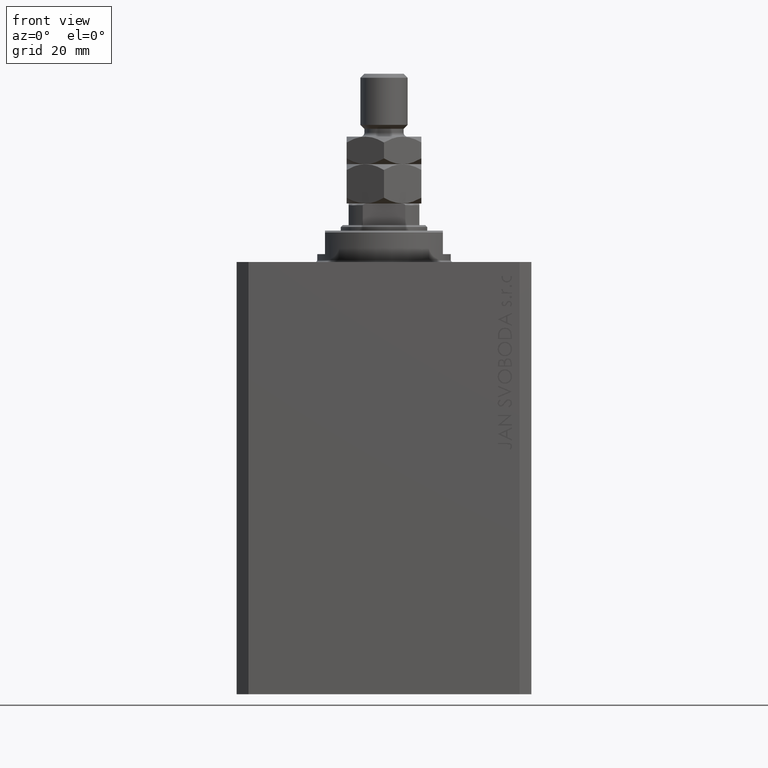
[diagram: clean part render]
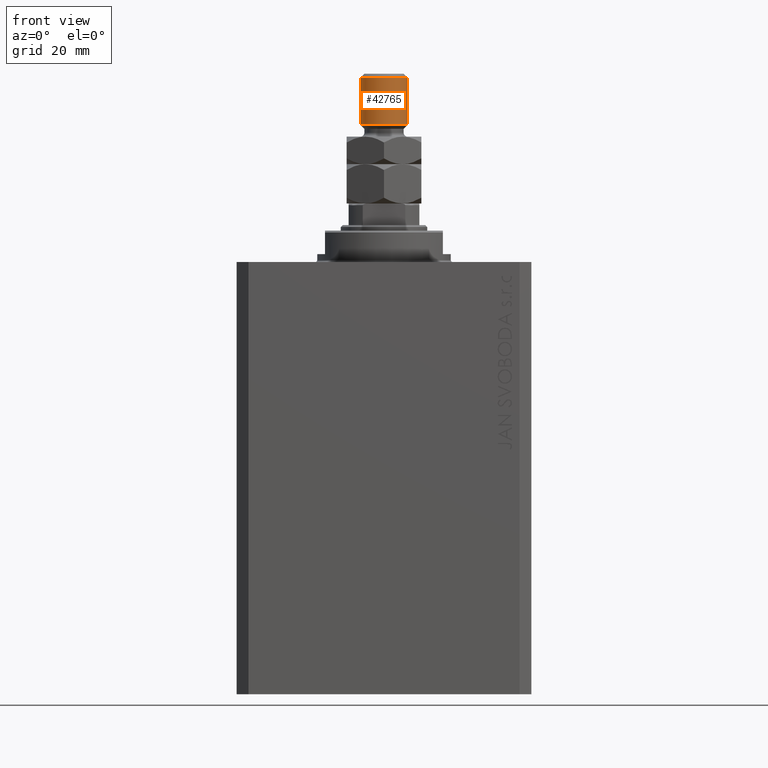
[diagram: same view with one face highlighted and labeled with its STEP entity id]
A machine part, front view. The second image highlights one B-rep face of the part: STEP entity #42765.
In plain terms, the highlighted cylindrical surface (edge-blend (fillet) strip) has radius 6 mm, axis along (-0, -0, -1).
Its self-contained STEP definition (entity closure, byte-faithful):
#1438 = DIRECTION ( 'NONE',  ( -0.000000000000000000, -0.000000000000000000, -1.000000000000000000 ) ) ;
#1981 = DIRECTION ( 'NONE',  ( -0.000000000000000000, -0.000000000000000000, 1.000000000000000000 ) ) ;
#2918 = EDGE_CURVE ( 'NONE', #26856, #43836, #8406, .T. ) ;
#3934 = ORIENTED_EDGE ( 'NONE', *, *, #19175, .T. ) ;
#4942 = DIRECTION ( 'NONE',  ( 1.000000000000000000, 0.000000000000000000, 0.000000000000000000 ) ) ;
#5677 = CARTESIAN_POINT ( 'NONE',  ( 0.000000000000000000, 0.000000000000000000, 20.00000000000000711 ) ) ;
#6818 = ORIENTED_EDGE ( 'NONE', *, *, #30848, .T. ) ;
#8406 = CIRCLE ( 'NONE', #27338, 6.000000000000000888 ) ;
#10136 = EDGE_LOOP ( 'NONE', ( #24186, #3934, #6818, #37737 ) ) ;
#10396 = CARTESIAN_POINT ( 'NONE',  ( 6.000000000000000888, 7.347880794884120722E-16, 33.00000000000000000 ) ) ;
#11997 = DIRECTION ( 'NONE',  ( 1.000000000000000000, 0.000000000000000000, 0.000000000000000000 ) ) ;
#12783 = DIRECTION ( 'NONE',  ( -1.000000000000000000, 0.000000000000000000, 0.000000000000000000 ) ) ;
#17280 = CARTESIAN_POINT ( 'NONE',  ( 6.000000000000000888, 7.347880794884120722E-16, 32.00000000000000000 ) ) ;
#18325 = CARTESIAN_POINT ( 'NONE',  ( -6.000000000000000888, 0.000000000000000000, 33.00000000000000000 ) ) ;
#18536 = LINE ( 'NONE', #10396, #27870 ) ;
#19175 = EDGE_CURVE ( 'NONE', #27536, #28732, #24341, .T. ) ;
#20201 = FACE_OUTER_BOUND ( 'NONE', #10136, .T. ) ;
#20396 = DIRECTION ( 'NONE',  ( 0.000000000000000000, 0.000000000000000000, -1.000000000000000000 ) ) ;
#22047 = LINE ( 'NONE', #18325, #31194 ) ;
#23188 = AXIS2_PLACEMENT_3D ( 'NONE', #35266, #1438, #12783 ) ;
#24186 = ORIENTED_EDGE ( 'NONE', *, *, #36365, .F. ) ;
#24341 = CIRCLE ( 'NONE', #48772, 6.000000000000000888 ) ;
#26463 = DIRECTION ( 'NONE',  ( -0.000000000000000000, -0.000000000000000000, -1.000000000000000000 ) ) ;
#26856 = VERTEX_POINT ( 'NONE', #47890 ) ;
#27338 = AXIS2_PLACEMENT_3D ( 'NONE', #5677, #1981, #4942 ) ;
#27536 = VERTEX_POINT ( 'NONE', #17280 ) ;
#27870 = VECTOR ( 'NONE', #48168, 1000.000000000000000 ) ;
#28732 = VERTEX_POINT ( 'NONE', #37991 ) ;
#30848 = EDGE_CURVE ( 'NONE', #28732, #26856, #22047, .T. ) ;
#31194 = VECTOR ( 'NONE', #26463, 1000.000000000000000 ) ;
#32284 = CYLINDRICAL_SURFACE ( 'NONE', #23188, 6.000000000000000888 ) ;
#35266 = CARTESIAN_POINT ( 'NONE',  ( 0.000000000000000000, 0.000000000000000000, 33.00000000000000000 ) ) ;
#36365 = EDGE_CURVE ( 'NONE', #27536, #43836, #18536, .T. ) ;
#37737 = ORIENTED_EDGE ( 'NONE', *, *, #2918, .T. ) ;
#37991 = CARTESIAN_POINT ( 'NONE',  ( -6.000000000000000888, 0.000000000000000000, 32.00000000000000000 ) ) ;
#38430 = CARTESIAN_POINT ( 'NONE',  ( 0.000000000000000000, 0.000000000000000000, 32.00000000000000000 ) ) ;
#42765 = ADVANCED_FACE ( 'NONE', ( #20201 ), #32284, .T. ) ;
#43836 = VERTEX_POINT ( 'NONE', #47854 ) ;
#47854 = CARTESIAN_POINT ( 'NONE',  ( 6.000000000000000888, 7.347880794884120722E-16, 20.00000000000000711 ) ) ;
#47890 = CARTESIAN_POINT ( 'NONE',  ( -6.000000000000000888, 0.000000000000000000, 20.00000000000000711 ) ) ;
#48168 = DIRECTION ( 'NONE',  ( -0.000000000000000000, -0.000000000000000000, -1.000000000000000000 ) ) ;
#48772 = AXIS2_PLACEMENT_3D ( 'NONE', #38430, #20396, #11997 ) ;